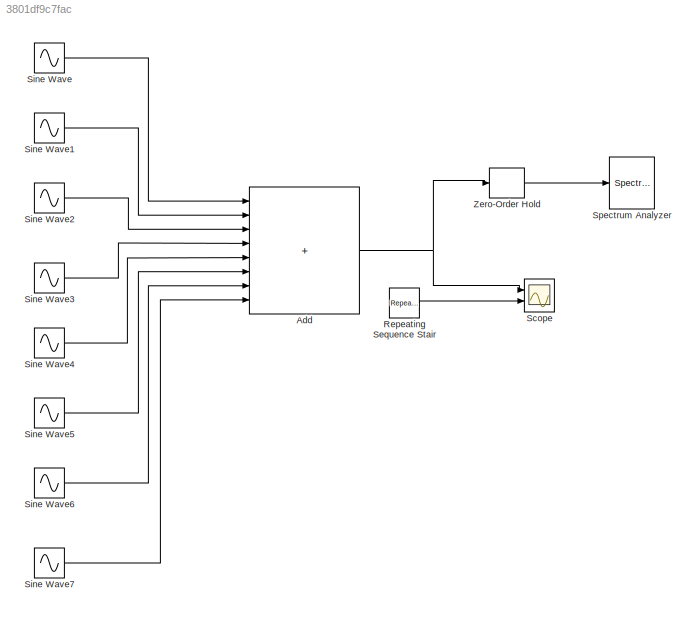
MODEL slx_3801df9c7fac
KIND model
CONFIG AbsTol = auto
CONFIG EnableMultiTasking = off
CONFIG FixedStep = auto
CONFIG MaxStep = auto
CONFIG MinStep = auto
CONFIG RelTol = 1e-3
CONFIG SampleTimeConstraint = Unconstrained
CONFIG SolverName = VariableStepAuto
CONFIG StartTime = 0.0
CONFIG StopTime = 2
BLOCK [Sum] Add
  IconShape = rectangular
  Inputs = ++++++++
  Ports = [8, 1]
BLOCK [Reference] Repeating Sequence Stair  REF=simulink/Sources/Repeating
Sequence
Stair
  Ports = [0, 1]
  SourceBlock = simulink/Sources/Repeating\nSequence\nStair
  SourceProductBaseCode = SL
  SourceType = Repeating Sequence Stair
BLOCK [Scope] Scope
  Floating = off
  NumInputPorts = 2
  Ports = [2]
  ScopeSpecificationString = Simulink.scopes.TimeScopeBlockCfg('CurrentConfiguration', extmgr.ConfigurationSet(extmgr.Configuration('Core','General UI',true),extmgr.Configuration('Core','Source UI',true),extmgr.Configuration('Sources','WiredSimulink',true),extmgr.Configuration('Visuals','Time Domain',true,'SerializedDisplays',{struct('MinYLimReal','-1.843','MaxYLimReal','2.22186','YLabelReal','','MinYLimMag','0.00000','MaxYLi...<+1429ch>
BLOCK [Sin] Sine Wave
  Amplitude = 4/3.14159
  Frequency = 32*2*3.14
  Ports = [0, 1]
  SampleTime = 0
BLOCK [Sin] Sine Wave1
  Amplitude = 4/(3*3.14)
  Frequency = 2*32*3.14*3
  Ports = [0, 1]
  SampleTime = 0
BLOCK [Sin] Sine Wave2
  Amplitude = 4/(5*3.14)
  Frequency = 2*32*3.14*5
  Ports = [0, 1]
  SampleTime = 0
BLOCK [Sin] Sine Wave3
  Amplitude = 4/(3.14*7)
  Frequency = 2*3.14*32*7
  Ports = [0, 1]
  SampleTime = 0
BLOCK [Sin] Sine Wave4
  Amplitude = 4/(9*3.14159)
  Frequency = 32*2*3.14 * 9
  Ports = [0, 1]
  SampleTime = 0
BLOCK [Sin] Sine Wave5
  Amplitude = 4/(11*3.14)
  Frequency = 2*32*3.14*11
  Ports = [0, 1]
  SampleTime = 0
BLOCK [Sin] Sine Wave6
  Amplitude = 4/(13*3.14)
  Frequency = 2*32*3.14*13
  Ports = [0, 1]
  SampleTime = 0
BLOCK [Sin] Sine Wave7
  Amplitude = 4/(3.14*15)
  Frequency = 2*3.14*32*15
  Ports = [0, 1]
  SampleTime = 0
BLOCK [SpectrumAnalyzer] Spectrum Analyzer
  Ports = [1]
  ScopeSpecificationString = spbscopes.SpectrumAnalyzerBlockCfg('CurrentConfiguration', extmgr.ConfigurationSet(extmgr.Configuration('Core','General UI',true),extmgr.Configuration('Core','Source UI',true),extmgr.Configuration('Sources','WiredSimulink',true),extmgr.Configuration('Visuals','Spectrum',true,'AxesProperties',struct('Color',{[0 0 0],[0 0 0]},'XColor',{[0.686274509803922 0.686274509803922 0.686274509803922],[0.68627...<+2213ch>
BLOCK [ZeroOrderHold] Zero-Order Hold
  SampleTime = 1/1024
NET Add:1 -> Scope:1, Zero-Order Hold:1
LINE Repeating Sequence Stair:1 -> Scope:2
LINE Sine Wave1:1 -> Add:2
LINE Sine Wave2:1 -> Add:3
LINE Sine Wave3:1 -> Add:4
LINE Sine Wave4:1 -> Add:5
LINE Sine Wave5:1 -> Add:6
LINE Sine Wave6:1 -> Add:7
LINE Sine Wave7:1 -> Add:8
LINE Sine Wave:1 -> Add:1
LINE Zero-Order Hold:1 -> Spectrum Analyzer:1
note: NET lines group one-source signal fan-out (src -> all destinations, sorted); 1:1 wires keep LINE
